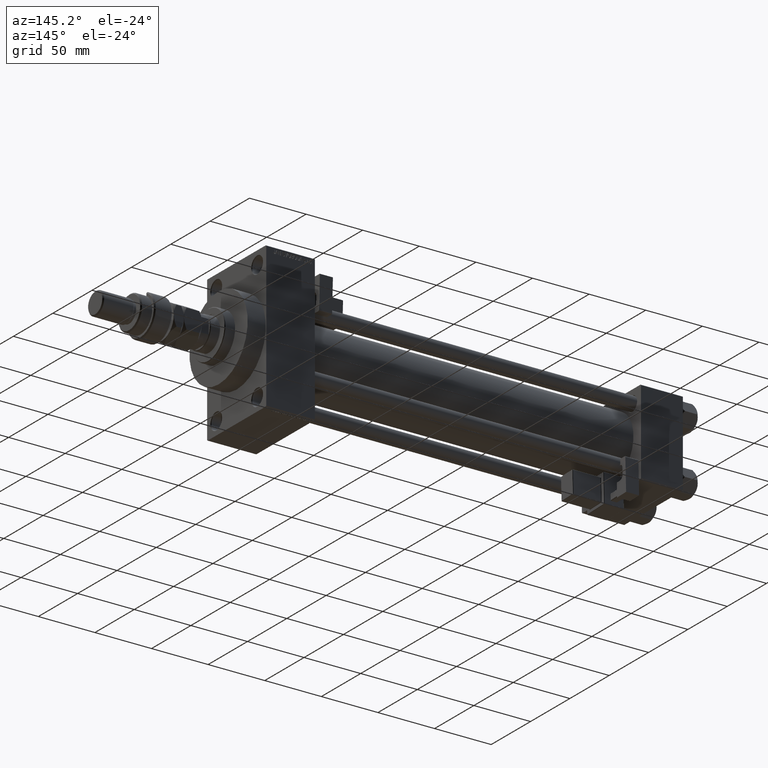
[diagram: clean part render]
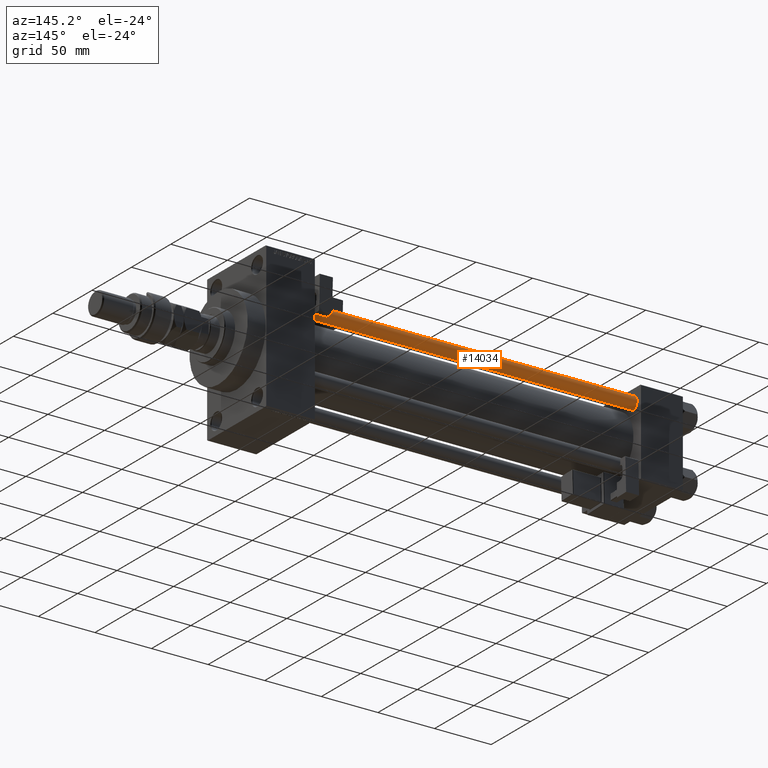
[diagram: same view with one face highlighted and labeled with its STEP entity id]
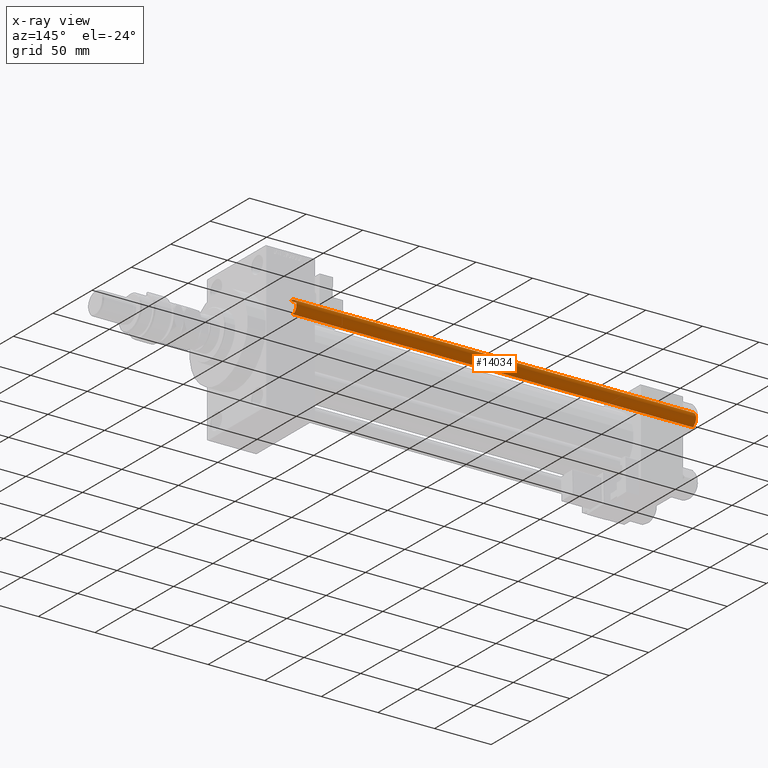
[diagram: x-ray of the same camera — body ghosted, the highlighted face saturated]
A machine part, auxiliary view. The second image highlights one B-rep face of the part: STEP entity #14034.
The next image is the same camera in x-ray: the body ghosted, the highlighted face saturated — about 0% of this face is hidden behind the body in this view.
In plain terms, the highlighted cylindrical surface (edge-blend (fillet) strip) has radius 6 mm, axis along (-1, -0, 0).
Its self-contained STEP definition (entity closure, byte-faithful):
#954 = EDGE_CURVE ( 'NONE', #7843, #30691, #26346, .T. ) ;
#2034 = DIRECTION ( 'NONE',  ( 1.000000000000000000, 0.000000000000000000, 0.000000000000000000 ) ) ;
#2053 = ORIENTED_EDGE ( 'NONE', *, *, #50476, .T. ) ;
#2826 = DIRECTION ( 'NONE',  ( -0.000000000000000000, -0.000000000000000000, 1.000000000000000000 ) ) ;
#4808 = CIRCLE ( 'NONE', #47863, 6.000000000000000888 ) ;
#6064 = DIRECTION ( 'NONE',  ( 1.000000000000000000, 0.000000000000000000, 0.000000000000000000 ) ) ;
#6439 = CARTESIAN_POINT ( 'NONE',  ( -6.000000000000000888, 0.000000000000000000, 0.5000000000000559552 ) ) ;
#6920 = DIRECTION ( 'NONE',  ( -0.000000000000000000, -0.000000000000000000, -1.000000000000000000 ) ) ;
#7843 = VERTEX_POINT ( 'NONE', #32134 ) ;
#8789 = VECTOR ( 'NONE', #22302, 1000.000000000000000 ) ;
#9117 = FACE_OUTER_BOUND ( 'NONE', #25212, .T. ) ;
#10021 = CARTESIAN_POINT ( 'NONE',  ( 0.000000000000000000, 0.000000000000000000, 353.5000000000000000 ) ) ;
#10689 = LINE ( 'NONE', #14653, #8789 ) ;
#11000 = CARTESIAN_POINT ( 'NONE',  ( -6.000000000000000888, 0.000000000000000000, 353.5000000000000000 ) ) ;
#14034 = ADVANCED_FACE ( 'NONE', ( #9117 ), #49543, .T. ) ;
#14653 = CARTESIAN_POINT ( 'NONE',  ( -6.000000000000000888, 0.000000000000000000, 354.0000000000000000 ) ) ;
#18089 = VERTEX_POINT ( 'NONE', #6439 ) ;
#19112 = AXIS2_PLACEMENT_3D ( 'NONE', #10021, #26133, #6064 ) ;
#20384 = ORIENTED_EDGE ( 'NONE', *, *, #49345, .T. ) ;
#22302 = DIRECTION ( 'NONE',  ( -0.000000000000000000, -0.000000000000000000, -1.000000000000000000 ) ) ;
#25212 = EDGE_LOOP ( 'NONE', ( #20384, #44009, #2053, #28557 ) ) ;
#25316 = DIRECTION ( 'NONE',  ( -0.000000000000000000, -0.000000000000000000, -1.000000000000000000 ) ) ;
#26036 = CARTESIAN_POINT ( 'NONE',  ( 6.000000000000000888, 7.347880794884120722E-16, 0.5000000000000559552 ) ) ;
#26133 = DIRECTION ( 'NONE',  ( 0.000000000000000000, 0.000000000000000000, -1.000000000000000000 ) ) ;
#26346 = LINE ( 'NONE', #34262, #51219 ) ;
#28557 = ORIENTED_EDGE ( 'NONE', *, *, #34909, .F. ) ;
#30032 = CARTESIAN_POINT ( 'NONE',  ( 0.000000000000000000, 0.000000000000000000, 0.5000000000000559552 ) ) ;
#30691 = VERTEX_POINT ( 'NONE', #26036 ) ;
#32134 = CARTESIAN_POINT ( 'NONE',  ( 6.000000000000000888, 7.347880794884120722E-16, 353.5000000000000000 ) ) ;
#34262 = CARTESIAN_POINT ( 'NONE',  ( 6.000000000000000888, 7.347880794884120722E-16, 354.0000000000000000 ) ) ;
#34909 = EDGE_CURVE ( 'NONE', #47535, #18089, #10689, .T. ) ;
#41344 = CARTESIAN_POINT ( 'NONE',  ( 0.000000000000000000, 0.000000000000000000, 354.0000000000000000 ) ) ;
#44009 = ORIENTED_EDGE ( 'NONE', *, *, #954, .T. ) ;
#44040 = AXIS2_PLACEMENT_3D ( 'NONE', #41344, #6920, #51578 ) ;
#46974 = CIRCLE ( 'NONE', #19112, 6.000000000000000888 ) ;
#47535 = VERTEX_POINT ( 'NONE', #11000 ) ;
#47863 = AXIS2_PLACEMENT_3D ( 'NONE', #30032, #2826, #2034 ) ;
#49345 = EDGE_CURVE ( 'NONE', #47535, #7843, #46974, .T. ) ;
#49543 = CYLINDRICAL_SURFACE ( 'NONE', #44040, 6.000000000000000888 ) ;
#50476 = EDGE_CURVE ( 'NONE', #30691, #18089, #4808, .T. ) ;
#51219 = VECTOR ( 'NONE', #25316, 1000.000000000000000 ) ;
#51578 = DIRECTION ( 'NONE',  ( -1.000000000000000000, 0.000000000000000000, 0.000000000000000000 ) ) ;